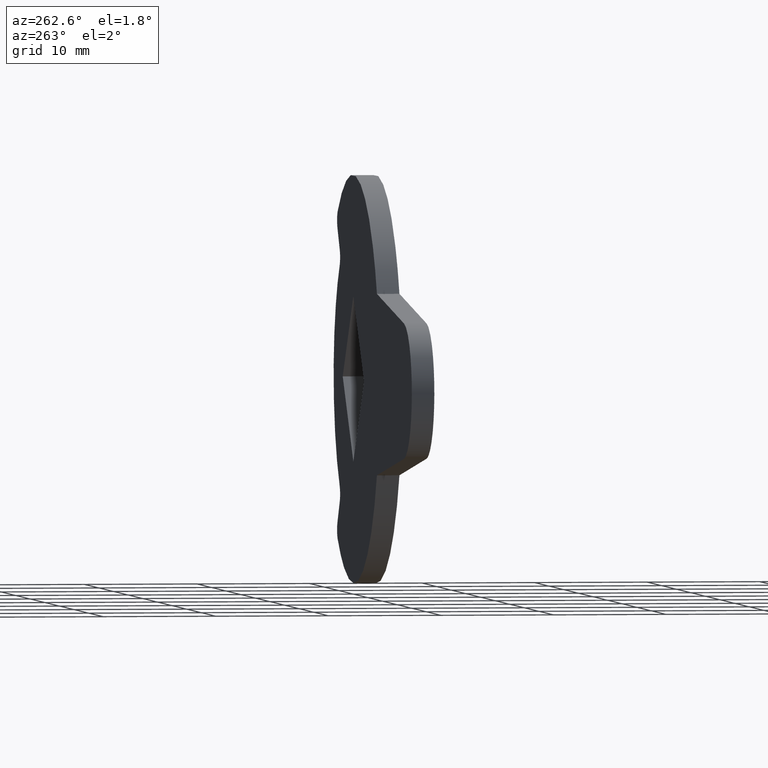
[diagram: clean part render]
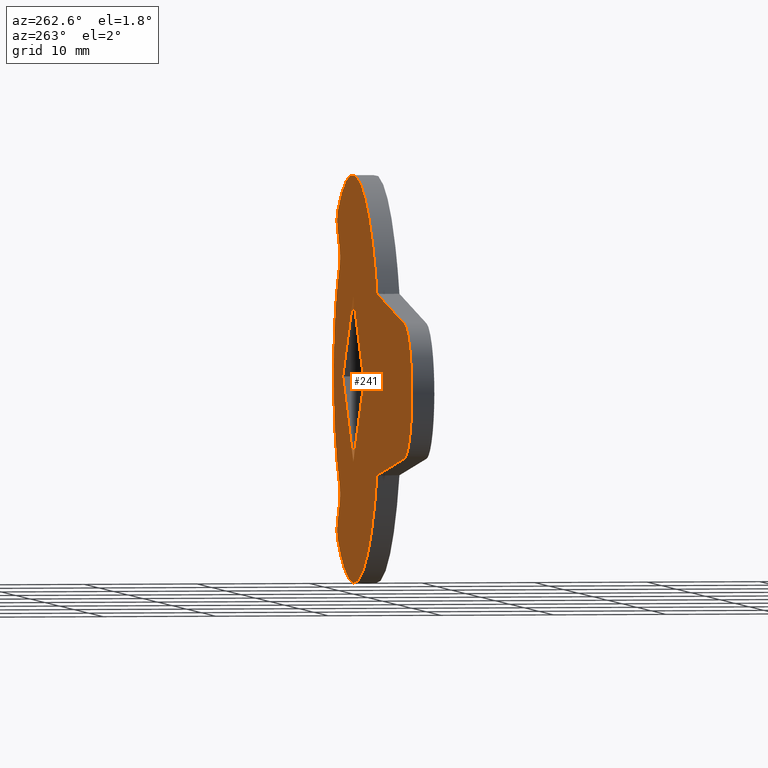
[diagram: same view with one face highlighted and labeled with its STEP entity id]
A machine part, auxiliary view. The second image highlights one B-rep face of the part: STEP entity #241.
In plain terms, the highlighted face is a freeform B-spline surface patch.
Its self-contained STEP definition (entity closure, byte-faithful):
#44=CARTESIAN_POINT('',(-42.672072522692837,0.0,19.798160958607792));
#45=CARTESIAN_POINT('',(16.172307132952142,0.0,19.798160958607792));
#46=CARTESIAN_POINT('',(-42.672072522692837,0.0,-19.798180533607209));
#47=CARTESIAN_POINT('',(16.172307132952142,0.0,-19.798180533607209));
#48=B_SPLINE_SURFACE_WITH_KNOTS('',1,1,((#44,#46),(#45,#47)),.UNSPECIFIED.,.F.,.F.,.U.,(2,2),(2,2),(0.0,58.844379655644993),(0.0,39.596341492214997),.UNSPECIFIED.);
#49=CARTESIAN_POINT('',(-16.124516390019249,0.0,-7.999998199249859));
#50=VERTEX_POINT('',#49);
#51=CARTESIAN_POINT('',(-34.676984152787249,0.0,-5.961662655938681));
#52=VERTEX_POINT('',#51);
#53=CARTESIAN_POINT('',(-16.124516390019249,0.0,-7.999998199249859));
#54=CARTESIAN_POINT('',(-34.676984152787249,0.0,-5.961662655938681));
#55=QUASI_UNIFORM_CURVE('',1,(#53,#54),.UNSPECIFIED.,.F.,.U.);
#56=EDGE_CURVE('',#50,#52,#55,.T.);
#57=ORIENTED_EDGE('',*,*,#56,.T.);
#58=CARTESIAN_POINT('',(-34.633145301686049,0.0,5.966479173585730));
#59=VERTEX_POINT('',#58);
#60=CARTESIAN_POINT('',(-34.633145301686049,0.0,5.966479173585726));
#61=CARTESIAN_POINT('',(-39.979998210725512,0.0,5.398907567245670));
#62=CARTESIAN_POINT('',(-39.999759478119252,0.0,0.022051324836150));
#63=CARTESIAN_POINT('',(-40.019520745512963,0.0,-5.354804917573370));
#64=CARTESIAN_POINT('',(-34.676984152787249,0.0,-5.961662655938678));
#72=(BOUNDED_CURVE()B_SPLINE_CURVE(2,(#60,#61,#62,#63,#64),.UNSPECIFIED.,.F.,.U.)B_SPLINE_CURVE_WITH_KNOTS((3,2,3),(0.0,0.500000000000000,1.0),.UNSPECIFIED.)CURVE()GEOMETRIC_REPRESENTATION_ITEM()RATIONAL_B_SPLINE_CURVE((1.0,0.744718579548289,1.0,0.744718579548289,1.0))REPRESENTATION_ITEM(''));
#73=EDGE_CURVE('',#59,#52,#72,.T.);
#74=ORIENTED_EDGE('',*,*,#73,.F.);
#75=CARTESIAN_POINT('',(-16.124516390019298,0.0,7.999998199249760));
#76=VERTEX_POINT('',#75);
#77=CARTESIAN_POINT('',(-34.633145301686049,0.0,5.966479173585730));
#78=CARTESIAN_POINT('',(-16.124516390019298,0.0,7.999998199249760));
#79=QUASI_UNIFORM_CURVE('',1,(#77,#78),.UNSPECIFIED.,.F.,.U.);
#80=EDGE_CURVE('',#59,#76,#79,.T.);
#81=ORIENTED_EDGE('',*,*,#80,.T.);
#82=CARTESIAN_POINT('',(10.739072857427660,0.0,14.445526761286960));
#83=VERTEX_POINT('',#82);
#84=CARTESIAN_POINT('',(10.739072857427670,0.0,14.445526761286979));
#85=CARTESIAN_POINT('',(3.984586888391954,0.0,19.466919151968000));
#86=CARTESIAN_POINT('',(-4.199630048120304,0.0,17.503235016676509));
#87=CARTESIAN_POINT('',(-12.383846984632562,0.0,15.539550881385031));
#88=CARTESIAN_POINT('',(-16.124516390019298,0.0,7.999998199249757));
#96=(BOUNDED_CURVE()B_SPLINE_CURVE(2,(#84,#85,#86,#87,#88),.UNSPECIFIED.,.F.,.U.)B_SPLINE_CURVE_WITH_KNOTS((3,2,3),(0.0,0.500000000000000,1.0),.UNSPECIFIED.)CURVE()GEOMETRIC_REPRESENTATION_ITEM()RATIONAL_B_SPLINE_CURVE((1.0,0.905864952288434,1.0,0.905864952288434,1.0))REPRESENTATION_ITEM(''));
#97=EDGE_CURVE('',#83,#76,#96,.T.);
#98=ORIENTED_EDGE('',*,*,#97,.F.);
#99=CARTESIAN_POINT('',(10.903888410520860,0.0,12.994704011793500));
#100=VERTEX_POINT('',#99);
#101=CARTESIAN_POINT('',(10.903888410520850,0.0,12.994704011793511));
#102=CARTESIAN_POINT('',(11.185033449866765,0.0,13.324930315184833));
#103=CARTESIAN_POINT('',(11.136079863434230,0.0,13.755854311935661));
#104=CARTESIAN_POINT('',(11.087126277001692,0.0,14.186778308686488));
#105=CARTESIAN_POINT('',(10.739072857427660,0.0,14.445526761286960));
#113=(BOUNDED_CURVE()B_SPLINE_CURVE(2,(#101,#102,#103,#104,#105),.UNSPECIFIED.,.F.,.U.)B_SPLINE_CURVE_WITH_KNOTS((3,2,3),(0.0,0.500000000000000,1.0),.UNSPECIFIED.)CURVE()GEOMETRIC_REPRESENTATION_ITEM()RATIONAL_B_SPLINE_CURVE((1.0,0.917438250666661,1.0,0.917438250666661,1.0))REPRESENTATION_ITEM(''));
#114=EDGE_CURVE('',#100,#83,#113,.T.);
#115=ORIENTED_EDGE('',*,*,#114,.F.);
#116=CARTESIAN_POINT('',(9.302911589467289,0.0,11.086695988192600));
#117=VERTEX_POINT('',#116);
#118=CARTESIAN_POINT('',(10.903888410520860,0.0,12.994704011793500));
#119=CARTESIAN_POINT('',(9.302911589467289,0.0,11.086695988192600));
#120=QUASI_UNIFORM_CURVE('',1,(#118,#119),.UNSPECIFIED.,.F.,.U.);
#121=EDGE_CURVE('',#100,#117,#120,.T.);
#122=ORIENTED_EDGE('',*,*,#121,.T.);
#123=CARTESIAN_POINT('',(9.370201414441402,0.0,9.718512161382490));
#124=VERTEX_POINT('',#123);
#125=CARTESIAN_POINT('',(9.302911589467280,0.0,11.086695988192609));
#126=CARTESIAN_POINT('',(8.693486324251857,0.0,10.370976687549268));
#127=CARTESIAN_POINT('',(9.370201414441397,0.0,9.718512161382483));
#135=(BOUNDED_CURVE()B_SPLINE_CURVE(2,(#125,#126,#127),.UNSPECIFIED.,.F.,.U.)CURVE()GEOMETRIC_REPRESENTATION_ITEM()QUASI_UNIFORM_CURVE()RATIONAL_B_SPLINE_CURVE((1.0,0.728615029615800,1.0))REPRESENTATION_ITEM(''));
#136=EDGE_CURVE('',#117,#124,#135,.T.);
#137=ORIENTED_EDGE('',*,*,#136,.T.);
#138=CARTESIAN_POINT('',(9.370232998812860,0.0,-9.718481708830780));
#139=VERTEX_POINT('',#138);
#140=CARTESIAN_POINT('',(9.370232998812858,0.0,-9.718481708830781));
#141=CARTESIAN_POINT('',(13.500002456544811,0.0,-5.736679563118574));
#142=CARTESIAN_POINT('',(13.499993134626131,0.0,0.000021937005616));
#143=CARTESIAN_POINT('',(13.499983812707452,0.0,5.736723437129803));
#144=CARTESIAN_POINT('',(9.370201414441402,0.0,9.718512161382490));
#152=(BOUNDED_CURVE()B_SPLINE_CURVE(2,(#140,#141,#142,#143,#144),.UNSPECIFIED.,.F.,.U.)B_SPLINE_CURVE_WITH_KNOTS((3,2,3),(0.0,0.500000000000000,1.0),.UNSPECIFIED.)CURVE()GEOMETRIC_REPRESENTATION_ITEM()RATIONAL_B_SPLINE_CURVE((1.0,0.920350869292396,1.0,0.920350869292396,1.0))REPRESENTATION_ITEM(''));
#153=EDGE_CURVE('',#139,#124,#152,.T.);
#154=ORIENTED_EDGE('',*,*,#153,.F.);
#155=CARTESIAN_POINT('',(9.302911589466469,0.0,-11.086695988191639));
#156=VERTEX_POINT('',#155);
#157=CARTESIAN_POINT('',(9.370232998812860,0.0,-9.718481708830780));
#158=CARTESIAN_POINT('',(8.693520258576225,0.0,-10.370948212998021));
#159=CARTESIAN_POINT('',(9.302911589466465,0.0,-11.086695988191639));
#167=(BOUNDED_CURVE()B_SPLINE_CURVE(2,(#157,#158,#159),.UNSPECIFIED.,.F.,.U.)CURVE()GEOMETRIC_REPRESENTATION_ITEM()QUASI_UNIFORM_CURVE()RATIONAL_B_SPLINE_CURVE((1.0,0.728632280253743,1.0))REPRESENTATION_ITEM(''));
#168=EDGE_CURVE('',#139,#156,#167,.T.);
#169=ORIENTED_EDGE('',*,*,#168,.T.);
#170=CARTESIAN_POINT('',(10.903888410526561,0.0,-12.994704011800300));
#171=VERTEX_POINT('',#170);
#172=CARTESIAN_POINT('',(9.302911589466469,0.0,-11.086695988191639));
#173=CARTESIAN_POINT('',(10.903888410526561,0.0,-12.994704011800300));
#174=QUASI_UNIFORM_CURVE('',1,(#172,#173),.UNSPECIFIED.,.F.,.U.);
#175=EDGE_CURVE('',#156,#171,#174,.T.);
#176=ORIENTED_EDGE('',*,*,#175,.T.);
#177=CARTESIAN_POINT('',(10.739112776660720,0.0,-14.445497084531420));
#178=VERTEX_POINT('',#177);
#179=CARTESIAN_POINT('',(10.739112776660731,0.0,-14.445497084531430));
#180=CARTESIAN_POINT('',(11.087159702485563,0.0,-14.186750629943164));
#181=CARTESIAN_POINT('',(11.136101848852570,0.0,-13.755831778363071));
#182=CARTESIAN_POINT('',(11.185043995219578,0.0,-13.324912926782989));
#183=CARTESIAN_POINT('',(10.903888410526561,0.0,-12.994704011800300));
#191=(BOUNDED_CURVE()B_SPLINE_CURVE(2,(#179,#180,#181,#182,#183),.UNSPECIFIED.,.F.,.U.)B_SPLINE_CURVE_WITH_KNOTS((3,2,3),(0.0,0.500000000000000,1.0),.UNSPECIFIED.)CURVE()GEOMETRIC_REPRESENTATION_ITEM()RATIONAL_B_SPLINE_CURVE((1.0,0.917434344494731,1.0,0.917434344494731,1.0))REPRESENTATION_ITEM(''));
#192=EDGE_CURVE('',#178,#171,#191,.T.);
#193=ORIENTED_EDGE('',*,*,#192,.F.);
#194=CARTESIAN_POINT('',(-16.124516390019259,0.0,-7.999998199249873));
#195=CARTESIAN_POINT('',(-12.383854566696820,0.0,-15.539582422374794));
#196=CARTESIAN_POINT('',(-4.199610718877528,0.0,-17.503261055320699));
#197=CARTESIAN_POINT('',(3.984633128941766,0.0,-19.466939688266606));
#198=CARTESIAN_POINT('',(10.739112776660731,0.0,-14.445497084531450));
#206=(BOUNDED_CURVE()B_SPLINE_CURVE(2,(#194,#195,#196,#197,#198),.UNSPECIFIED.,.F.,.U.)B_SPLINE_CURVE_WITH_KNOTS((3,2,3),(0.0,0.500000000000000,1.0),.UNSPECIFIED.)CURVE()GEOMETRIC_REPRESENTATION_ITEM()RATIONAL_B_SPLINE_CURVE((1.0,0.905864136016763,1.0,0.905864136016763,1.0))REPRESENTATION_ITEM(''));
#207=EDGE_CURVE('',#50,#178,#206,.T.);
#208=ORIENTED_EDGE('',*,*,#207,.F.);
#209=EDGE_LOOP('',(#57,#74,#81,#98,#115,#122,#137,#154,#169,#176,#193,#208));
#210=FACE_OUTER_BOUND('',#209,.T.);
#211=CARTESIAN_POINT('',(0.000100000000003,0.0,-7.283200000000000));
#212=VERTEX_POINT('',#211);
#213=CARTESIAN_POINT('',(-7.283100000000000,0.0,0.0));
#214=VERTEX_POINT('',#213);
#215=CARTESIAN_POINT('',(0.000100000000003,0.0,-7.283200000000000));
#216=CARTESIAN_POINT('',(-7.283100000000000,0.0,0.0));
#217=QUASI_UNIFORM_CURVE('',1,(#215,#216),.UNSPECIFIED.,.F.,.U.);
#218=EDGE_CURVE('',#212,#214,#217,.T.);
#219=ORIENTED_EDGE('',*,*,#218,.F.);
#220=CARTESIAN_POINT('',(7.283299999999900,0.0,0.0));
#221=VERTEX_POINT('',#220);
#222=CARTESIAN_POINT('',(7.283299999999900,0.0,0.0));
#223=CARTESIAN_POINT('',(0.000100000000003,0.0,-7.283200000000000));
#224=QUASI_UNIFORM_CURVE('',1,(#222,#223),.UNSPECIFIED.,.F.,.U.);
#225=EDGE_CURVE('',#221,#212,#224,.T.);
#226=ORIENTED_EDGE('',*,*,#225,.F.);
#227=CARTESIAN_POINT('',(0.000100000000003,0.0,7.283200000000000));
#228=VERTEX_POINT('',#227);
#229=CARTESIAN_POINT('',(0.000100000000003,0.0,7.283200000000000));
#230=CARTESIAN_POINT('',(7.283299999999900,0.0,0.0));
#231=QUASI_UNIFORM_CURVE('',1,(#229,#230),.UNSPECIFIED.,.F.,.U.);
#232=EDGE_CURVE('',#228,#221,#231,.T.);
#233=ORIENTED_EDGE('',*,*,#232,.F.);
#234=CARTESIAN_POINT('',(-7.283100000000000,0.0,0.0));
#235=CARTESIAN_POINT('',(0.000100000000003,0.0,7.283200000000000));
#236=QUASI_UNIFORM_CURVE('',1,(#234,#235),.UNSPECIFIED.,.F.,.U.);
#237=EDGE_CURVE('',#214,#228,#236,.T.);
#238=ORIENTED_EDGE('',*,*,#237,.F.);
#239=EDGE_LOOP('',(#219,#226,#233,#238));
#240=FACE_BOUND('',#239,.T.);
#241=ADVANCED_FACE('',(#210,#240),#48,.T.);